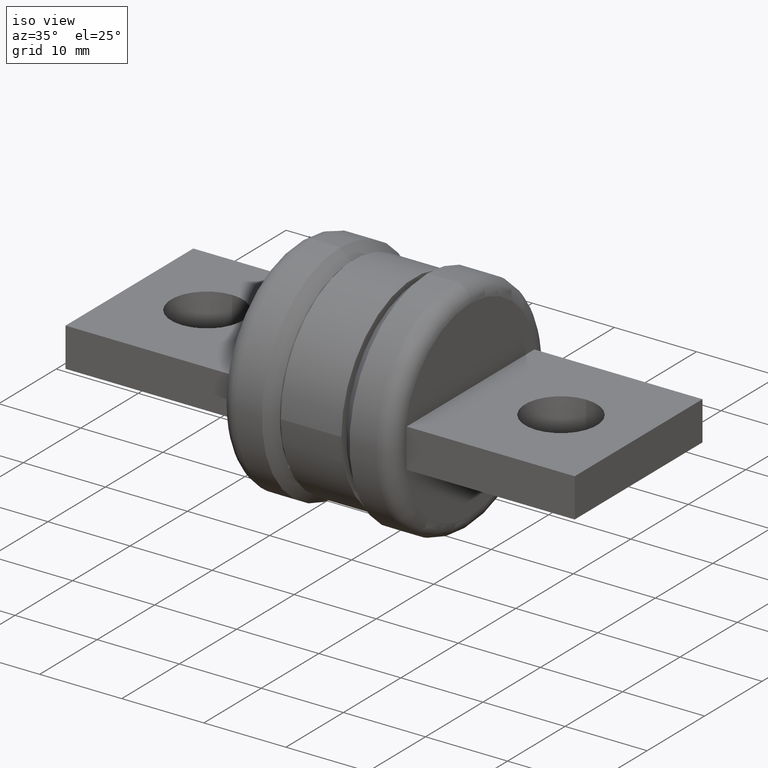
[diagram: clean part render]
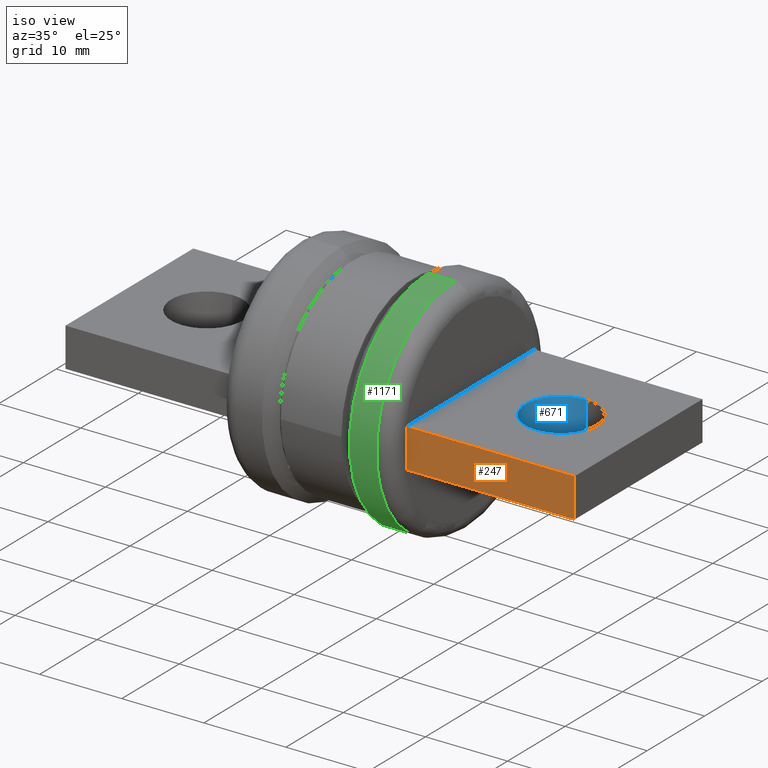
[diagram: same view with three faces highlighted in distinct colors, each labeled with its STEP entity id]
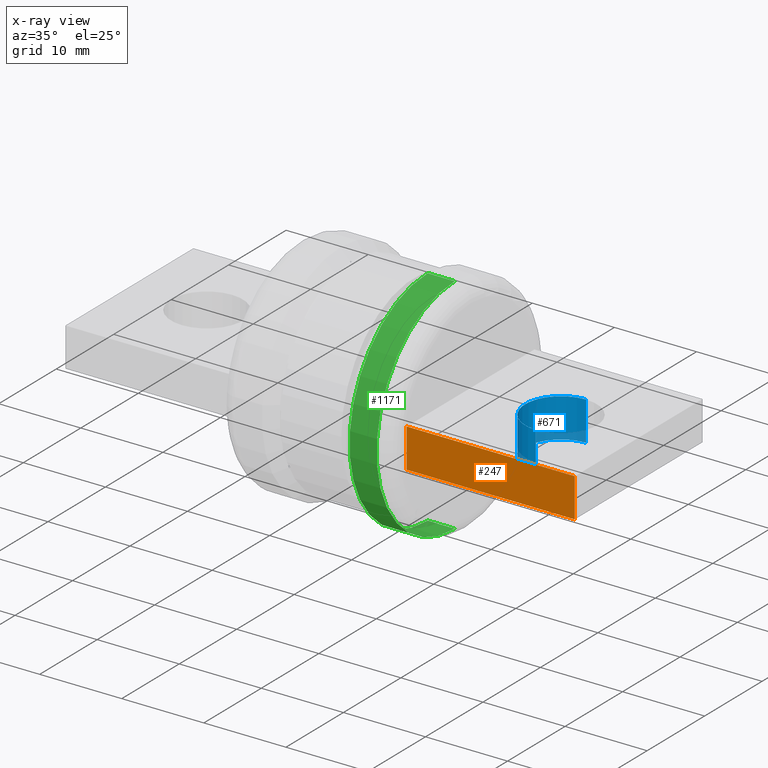
[diagram: x-ray of the same camera — body ghosted, the three highlighted faces saturated]
A machine part, iso view with three faces highlighted in distinct colors.
The next image is the same camera in x-ray (body ghosted, the three faces saturated) — at least one of them is partly hidden behind the body in this view.
Their STEP definitions:

[orange] entity #247 — the highlighted planar face has unit normal (0, 1, -0).
#115 = CARTESIAN_POINT ( 'NONE',  ( 0.6882856678774600400, -0.4374999999999998300, -0.09375000000000004200 ) ) ;
#125 = PLANE ( 'NONE',  #236 ) ;
#151 = EDGE_CURVE ( 'NONE', #396, #1665, #1439, .T. ) ;
#204 = CARTESIAN_POINT ( 'NONE',  ( 0.6882856678774600400, -0.4374999999999998300, 0.09374999999999997200 ) ) ;
#215 = ORIENTED_EDGE ( 'NONE', *, *, #742, .F. ) ;
#236 = AXIS2_PLACEMENT_3D ( 'NONE', #115, #1681, #899 ) ;
#242 = DIRECTION ( 'NONE',  ( 6.808368128482753500E-017, 1.110223024625156200E-016, 1.000000000000000000 ) ) ;
#247 = ADVANCED_FACE ( 'NONE', ( #530 ), #125, .F. ) ;
#253 = EDGE_LOOP ( 'NONE', ( #1374, #215, #1440, #751 ) ) ;
#347 = LINE ( 'NONE', #1660, #940 ) ;
#379 = CARTESIAN_POINT ( 'NONE',  ( 1.494285667877460100, -0.4374999999999992800, -0.09375000000000009700 ) ) ;
#396 = VERTEX_POINT ( 'NONE', #1059 ) ;
#426 = DIRECTION ( 'NONE',  ( 6.808368128482753500E-017, 1.110223024625156200E-016, 1.000000000000000000 ) ) ;
#515 = VECTOR ( 'NONE', #1072, 39.37007874015748100 ) ;
#517 = LINE ( 'NONE', #204, #1087 ) ;
#530 = FACE_OUTER_BOUND ( 'NONE', #253, .T. ) ;
#532 = CARTESIAN_POINT ( 'NONE',  ( 0.6882856678774600400, -0.4374999999999998300, 0.09374999999999997200 ) ) ;
#742 = EDGE_CURVE ( 'NONE', #935, #818, #347, .T. ) ;
#751 = ORIENTED_EDGE ( 'NONE', *, *, #151, .T. ) ;
#793 = EDGE_CURVE ( 'NONE', #1665, #818, #517, .T. ) ;
#818 = VERTEX_POINT ( 'NONE', #532 ) ;
#822 = VECTOR ( 'NONE', #242, 39.37007874015748100 ) ;
#899 = DIRECTION ( 'NONE',  ( 1.000000000000000000, -6.767453674826764200E-017, -6.808368128482741200E-017 ) ) ;
#926 = CARTESIAN_POINT ( 'NONE',  ( 1.494285667877460100, -0.4374999999999992800, 0.09374999999999991700 ) ) ;
#935 = VERTEX_POINT ( 'NONE', #1177 ) ;
#940 = VECTOR ( 'NONE', #426, 39.37007874015748100 ) ;
#1059 = CARTESIAN_POINT ( 'NONE',  ( 1.494285667877460100, -0.4374999999999992800, -0.09375000000000009700 ) ) ;
#1072 = DIRECTION ( 'NONE',  ( -1.000000000000000000, 6.767453674826764200E-017, 6.808368128482741200E-017 ) ) ;
#1087 = VECTOR ( 'NONE', #1108, 39.37007874015748100 ) ;
#1108 = DIRECTION ( 'NONE',  ( -1.000000000000000000, 6.767453674826764200E-017, 6.808368128482741200E-017 ) ) ;
#1177 = CARTESIAN_POINT ( 'NONE',  ( 0.6882856678774600400, -0.4374999999999998300, -0.09375000000000004200 ) ) ;
#1228 = LINE ( 'NONE', #1315, #515 ) ;
#1315 = CARTESIAN_POINT ( 'NONE',  ( 0.6882856678774600400, -0.4374999999999998300, -0.09375000000000004200 ) ) ;
#1374 = ORIENTED_EDGE ( 'NONE', *, *, #793, .T. ) ;
#1439 = LINE ( 'NONE', #379, #822 ) ;
#1440 = ORIENTED_EDGE ( 'NONE', *, *, #1581, .F. ) ;
#1581 = EDGE_CURVE ( 'NONE', #396, #935, #1228, .T. ) ;
#1660 = CARTESIAN_POINT ( 'NONE',  ( 0.6882856678774600400, -0.4374999999999998300, -0.09375000000000004200 ) ) ;
#1665 = VERTEX_POINT ( 'NONE', #926 ) ;
#1681 = DIRECTION ( 'NONE',  ( 6.767453674826762900E-017, 1.000000000000000000, -1.110223024625156800E-016 ) ) ;

[blue] entity #671 — the highlighted cylindrical surface (partial cylindrical patch) has radius 4.3688 mm, axis along (0, 0, 1).
#75 = ORIENTED_EDGE ( 'NONE', *, *, #1460, .T. ) ;
#94 = EDGE_CURVE ( 'NONE', #271, #1546, #779, .T. ) ;
#139 = CYLINDRICAL_SURFACE ( 'NONE', #481, 0.1720000000000000100 ) ;
#147 = EDGE_LOOP ( 'NONE', ( #1051, #442, #75, #1455 ) ) ;
#152 = DIRECTION ( 'NONE',  ( -6.808368128482753500E-017, -1.110223024625156000E-016, -1.000000000000000000 ) ) ;
#153 = DIRECTION ( 'NONE',  ( 6.808368128482753500E-017, 1.110223024625156200E-016, 1.000000000000000000 ) ) ;
#271 = VERTEX_POINT ( 'NONE', #662 ) ;
#303 = FACE_OUTER_BOUND ( 'NONE', #147, .T. ) ;
#315 = AXIS2_PLACEMENT_3D ( 'NONE', #888, #152, #728 ) ;
#354 = VERTEX_POINT ( 'NONE', #1027 ) ;
#425 = CARTESIAN_POINT ( 'NONE',  ( 1.122285667877459800, 0.1720000000000000100, -0.09375000000000012500 ) ) ;
#442 = ORIENTED_EDGE ( 'NONE', *, *, #1659, .T. ) ;
#481 = AXIS2_PLACEMENT_3D ( 'NONE', #1039, #153, #1148 ) ;
#570 = LINE ( 'NONE', #425, #1536 ) ;
#662 = CARTESIAN_POINT ( 'NONE',  ( 1.122285667877459800, -0.1720000000000000100, -0.09375000000000009700 ) ) ;
#671 = ADVANCED_FACE ( 'NONE', ( #303 ), #139, .F. ) ;
#672 = CARTESIAN_POINT ( 'NONE',  ( 1.122285667877459800, 3.053635401030332600E-017, 0.09374999999999990300 ) ) ;
#688 = EDGE_CURVE ( 'NONE', #1546, #1157, #1492, .T. ) ;
#728 = DIRECTION ( 'NONE',  ( 0.0000000000000000000, -1.000000000000000000, 9.926773232791653600E-017 ) ) ;
#738 = CARTESIAN_POINT ( 'NONE',  ( 1.122285667877459800, 0.1720000000000000400, 0.09374999999999988900 ) ) ;
#779 = LINE ( 'NONE', #1100, #952 ) ;
#819 = DIRECTION ( 'NONE',  ( -6.808368128482753500E-017, -1.110223024625156000E-016, -1.000000000000000000 ) ) ;
#828 = DIRECTION ( 'NONE',  ( 6.808368128482753500E-017, 1.110223024625156200E-016, 1.000000000000000000 ) ) ;
#888 = CARTESIAN_POINT ( 'NONE',  ( 1.122285667877459800, 9.719672298566113100E-018, -0.09375000000000011100 ) ) ;
#952 = VECTOR ( 'NONE', #828, 39.37007874015748100 ) ;
#999 = CARTESIAN_POINT ( 'NONE',  ( 1.122285667877459800, -0.1719999999999999600, 0.09374999999999991700 ) ) ;
#1027 = CARTESIAN_POINT ( 'NONE',  ( 1.122285667877459800, 0.1720000000000000100, -0.09375000000000012500 ) ) ;
#1039 = CARTESIAN_POINT ( 'NONE',  ( 1.122285667877459800, 9.719672298566113100E-018, -0.09375000000000011100 ) ) ;
#1051 = ORIENTED_EDGE ( 'NONE', *, *, #94, .F. ) ;
#1066 = CIRCLE ( 'NONE', #315, 0.1720000000000000100 ) ;
#1098 = AXIS2_PLACEMENT_3D ( 'NONE', #672, #819, #1588 ) ;
#1100 = CARTESIAN_POINT ( 'NONE',  ( 1.122285667877459800, -0.1720000000000000100, -0.09375000000000009700 ) ) ;
#1148 = DIRECTION ( 'NONE',  ( 0.0000000000000000000, 1.000000000000000000, -9.926773232791653600E-017 ) ) ;
#1157 = VERTEX_POINT ( 'NONE', #738 ) ;
#1212 = DIRECTION ( 'NONE',  ( 6.808368128482753500E-017, 1.110223024625156200E-016, 1.000000000000000000 ) ) ;
#1455 = ORIENTED_EDGE ( 'NONE', *, *, #688, .F. ) ;
#1460 = EDGE_CURVE ( 'NONE', #354, #1157, #570, .T. ) ;
#1492 = CIRCLE ( 'NONE', #1098, 0.1720000000000000100 ) ;
#1536 = VECTOR ( 'NONE', #1212, 39.37007874015748100 ) ;
#1546 = VERTEX_POINT ( 'NONE', #999 ) ;
#1588 = DIRECTION ( 'NONE',  ( 0.0000000000000000000, -1.000000000000000000, 9.926773232791653600E-017 ) ) ;
#1659 = EDGE_CURVE ( 'NONE', #271, #354, #1066, .T. ) ;

[green] entity #1171 — the highlighted cylindrical surface (partial cylindrical patch) has radius 13.6271 mm, axis along (-1, -0, 0).
#16 = CARTESIAN_POINT ( 'NONE',  ( 0.6132856678774598600, -3.782444770803346600E-017, 0.5364999999999999800 ) ) ;
#20 = VECTOR ( 'NONE', #942, 39.37007874015748100 ) ;
#80 = VERTEX_POINT ( 'NONE', #16 ) ;
#134 = LINE ( 'NONE', #1519, #440 ) ;
#149 = DIRECTION ( 'NONE',  ( -1.272995337215406900E-016, -1.110223024625155800E-016, -1.000000000000000000 ) ) ;
#159 = AXIS2_PLACEMENT_3D ( 'NONE', #270, #335, #939 ) ;
#167 = VERTEX_POINT ( 'NONE', #229 ) ;
#177 = DIRECTION ( 'NONE',  ( 0.0000000000000000000, -1.110223024625156000E-016, -1.000000000000000000 ) ) ;
#229 = CARTESIAN_POINT ( 'NONE',  ( 0.6132856678774598600, -9.124907747605719400E-017, -0.5364999999999999800 ) ) ;
#270 = CARTESIAN_POINT ( 'NONE',  ( 0.6132856678774598600, -3.168561220491757200E-017, 5.106276096362055600E-018 ) ) ;
#274 = EDGE_CURVE ( 'NONE', #310, #377, #915, .T. ) ;
#287 = CARTESIAN_POINT ( 'NONE',  ( 0.6882856678774597100, -8.361445684354084600E-017, -0.5364999999999999800 ) ) ;
#310 = VERTEX_POINT ( 'NONE', #1138 ) ;
#323 = LINE ( 'NONE', #287, #20 ) ;
#335 = DIRECTION ( 'NONE',  ( -1.000000000000000000, -1.017949417668852000E-016, 6.808368128482743700E-017 ) ) ;
#338 = CIRCLE ( 'NONE', #159, 0.5364999999999999800 ) ;
#362 = EDGE_CURVE ( 'NONE', #80, #310, #134, .T. ) ;
#377 = VERTEX_POINT ( 'NONE', #1402 ) ;
#397 = AXIS2_PLACEMENT_3D ( 'NONE', #807, #1448, #149 ) ;
#428 = AXIS2_PLACEMENT_3D ( 'NONE', #1231, #1375, #177 ) ;
#440 = VECTOR ( 'NONE', #1110, 39.37007874015748100 ) ;
#447 = EDGE_CURVE ( 'NONE', #167, #80, #338, .T. ) ;
#483 = FACE_OUTER_BOUND ( 'NONE', #1292, .T. ) ;
#579 = ORIENTED_EDGE ( 'NONE', *, *, #447, .T. ) ;
#605 = CYLINDRICAL_SURFACE ( 'NONE', #428, 0.5364999999999999800 ) ;
#656 = EDGE_CURVE ( 'NONE', #167, #377, #323, .T. ) ;
#807 = CARTESIAN_POINT ( 'NONE',  ( 0.4832856678774605200, -4.491895463461261600E-017, 1.395715466338958500E-017 ) ) ;
#915 = CIRCLE ( 'NONE', #397, 0.5364999999999999800 ) ;
#939 = DIRECTION ( 'NONE',  ( -1.272995337215406900E-016, -1.110223024625156000E-016, -1.000000000000000000 ) ) ;
#942 = DIRECTION ( 'NONE',  ( -1.000000000000000000, -1.017949417668852000E-016, 6.808368128482743700E-017 ) ) ;
#970 = ORIENTED_EDGE ( 'NONE', *, *, #274, .T. ) ;
#1058 = ORIENTED_EDGE ( 'NONE', *, *, #656, .F. ) ;
#1110 = DIRECTION ( 'NONE',  ( -1.000000000000000000, -1.017949417668852000E-016, 6.808368128482743700E-017 ) ) ;
#1138 = CARTESIAN_POINT ( 'NONE',  ( 0.4832856678774605800, -4.444111892288098400E-017, 0.5364999999999999800 ) ) ;
#1171 = ADVANCED_FACE ( 'NONE', ( #483 ), #605, .T. ) ;
#1231 = CARTESIAN_POINT ( 'NONE',  ( 0.6882856678774597100, -2.405099157240122500E-017, 3.791200677927629700E-033 ) ) ;
#1292 = EDGE_LOOP ( 'NONE', ( #579, #1442, #970, #1058 ) ) ;
#1375 = DIRECTION ( 'NONE',  ( -1.000000000000000000, -1.017949417668852000E-016, 6.808368128482743700E-017 ) ) ;
#1402 = CARTESIAN_POINT ( 'NONE',  ( 0.4832856678774604700, -1.044824199057522300E-016, -0.5364999999999999800 ) ) ;
#1442 = ORIENTED_EDGE ( 'NONE', *, *, #362, .T. ) ;
#1448 = DIRECTION ( 'NONE',  ( 1.000000000000000000, 1.017949417668852000E-016, -6.808368128482743700E-017 ) ) ;
#1519 = CARTESIAN_POINT ( 'NONE',  ( 0.6882856678774597100, -3.018982707551710000E-017, 0.5364999999999999800 ) ) ;